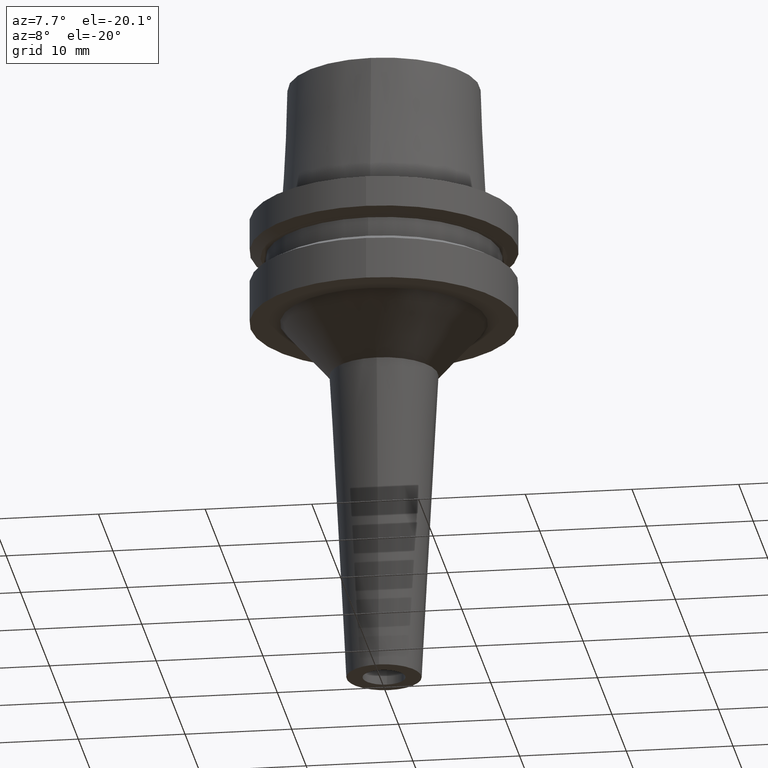
[diagram: clean part render]
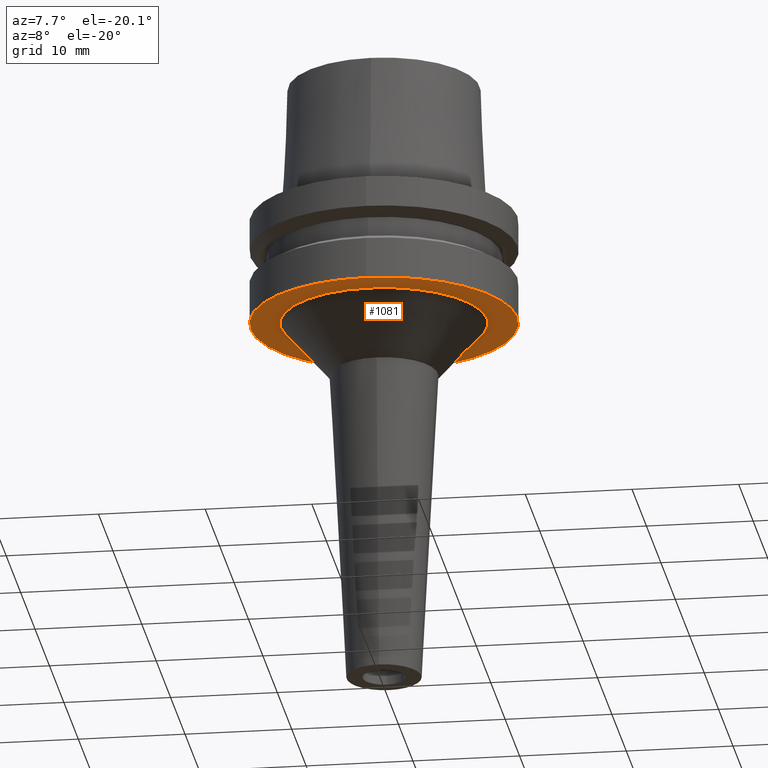
[diagram: same view with one face highlighted and labeled with its STEP entity id]
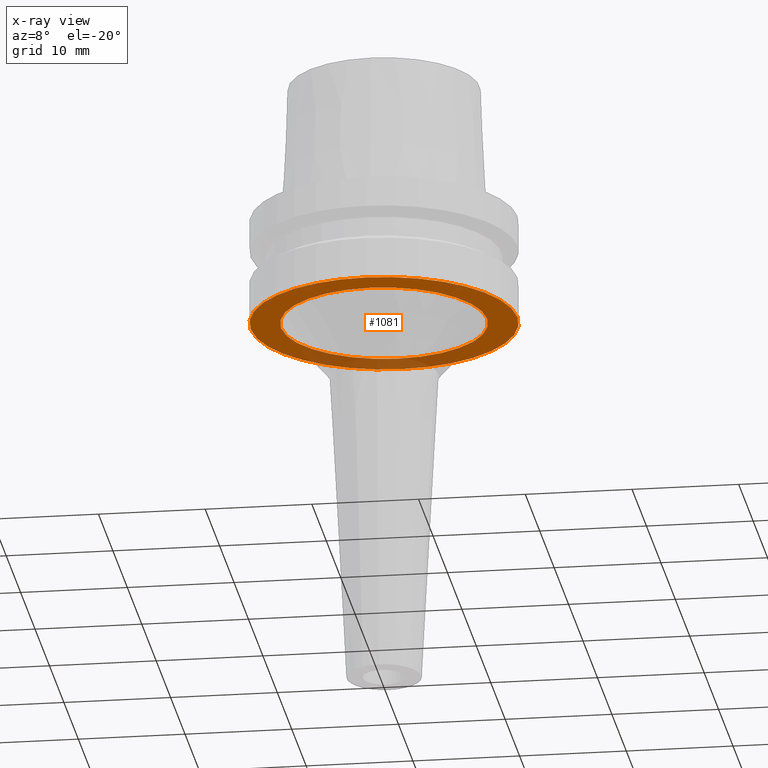
[diagram: x-ray of the same camera — body ghosted, the highlighted face saturated]
A machine part, auxiliary view. The second image highlights one B-rep face of the part: STEP entity #1081.
The next image is the same camera in x-ray: the body ghosted, the highlighted face saturated — about 23% of this face is hidden behind the body in this view.
In plain terms, the highlighted planar face has unit normal (0, 0, -1).
Its self-contained STEP definition (entity closure, byte-faithful):
#262=CARTESIAN_POINT('',(0.E0,1.419365640212E-14,-1.E1));
#263=DIRECTION('',(0.E0,0.E0,1.E0));
#264=DIRECTION('',(0.E0,-1.E0,0.E0));
#265=AXIS2_PLACEMENT_3D('',#262,#263,#264);
#270=CARTESIAN_POINT('',(0.E0,1.419365640212E-14,-1.E1));
#271=DIRECTION('',(0.E0,0.E0,1.E0));
#272=DIRECTION('',(0.E0,1.E0,0.E0));
#273=AXIS2_PLACEMENT_3D('',#270,#271,#272);
#278=CARTESIAN_POINT('',(0.E0,1.070341302455E-14,-1.E1));
#279=DIRECTION('',(0.E0,0.E0,-1.E0));
#280=DIRECTION('',(0.E0,-1.E0,0.E0));
#281=AXIS2_PLACEMENT_3D('',#278,#279,#280);
#286=CARTESIAN_POINT('',(0.E0,1.070341302455E-14,-1.E1));
#287=DIRECTION('',(0.E0,0.E0,-1.E0));
#288=DIRECTION('',(0.E0,1.E0,0.E0));
#289=AXIS2_PLACEMENT_3D('',#286,#287,#288);
#792=CARTESIAN_POINT('',(0.E0,9.662323198326E0,-1.E1));
#793=VERTEX_POINT('',#792);
#794=CARTESIAN_POINT('',(0.E0,-9.662323198326E0,-1.E1));
#795=VERTEX_POINT('',#794);
#796=CARTESIAN_POINT('',(0.E0,-1.25E1,-1.E1));
#797=CARTESIAN_POINT('',(0.E0,1.25E1,-1.E1));
#798=VERTEX_POINT('',#796);
#799=VERTEX_POINT('',#797);
#1066=CARTESIAN_POINT('',(0.E0,1.102182119233E-14,-1.E1));
#1067=DIRECTION('',(0.E0,0.E0,-1.E0));
#1068=DIRECTION('',(0.E0,-1.E0,0.E0));
#1069=AXIS2_PLACEMENT_3D('',#1066,#1067,#1068);
#1070=PLANE('',#1069);
#1071=ORIENTED_EDGE('',*,*,#1045,.T.);
#1072=ORIENTED_EDGE('',*,*,#1061,.T.);
#1073=EDGE_LOOP('',(#1071,#1072));
#1074=FACE_OUTER_BOUND('',#1073,.F.);
#1076=ORIENTED_EDGE('',*,*,#1075,.T.);
#1078=ORIENTED_EDGE('',*,*,#1077,.T.);
#1079=EDGE_LOOP('',(#1076,#1078));
#1080=FACE_BOUND('',#1079,.F.);
#266=CIRCLE('',#265,1.25E1);
#274=CIRCLE('',#273,1.25E1);
#282=CIRCLE('',#281,9.662323198326E0);
#290=CIRCLE('',#289,9.662323198326E0);
#1045=EDGE_CURVE('',#798,#799,#266,.T.);
#1061=EDGE_CURVE('',#799,#798,#274,.T.);
#1075=EDGE_CURVE('',#795,#793,#282,.T.);
#1077=EDGE_CURVE('',#793,#795,#290,.T.);
#1081=ADVANCED_FACE('',(#1074,#1080),#1070,.T.);